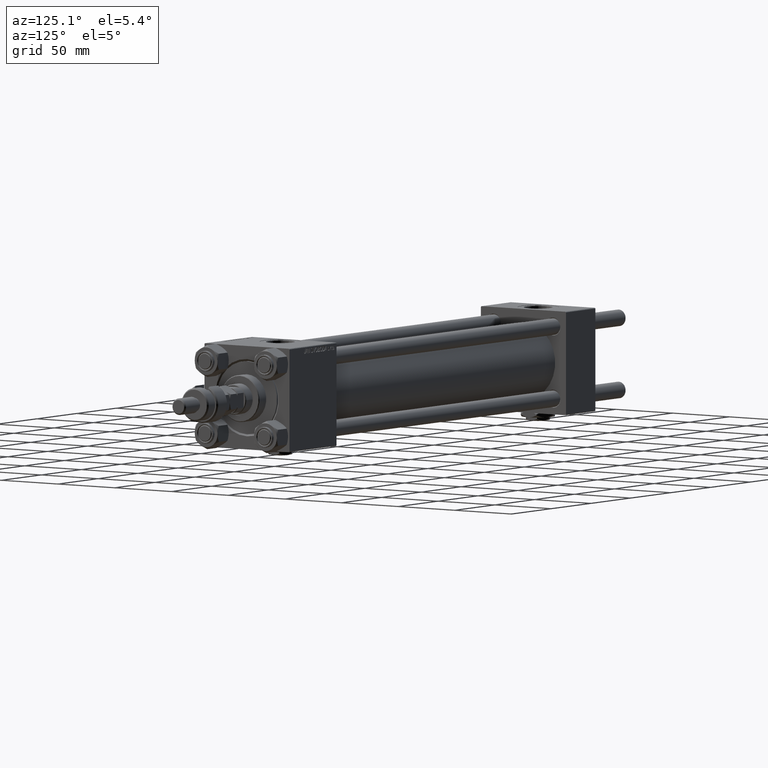
[diagram: clean part render]
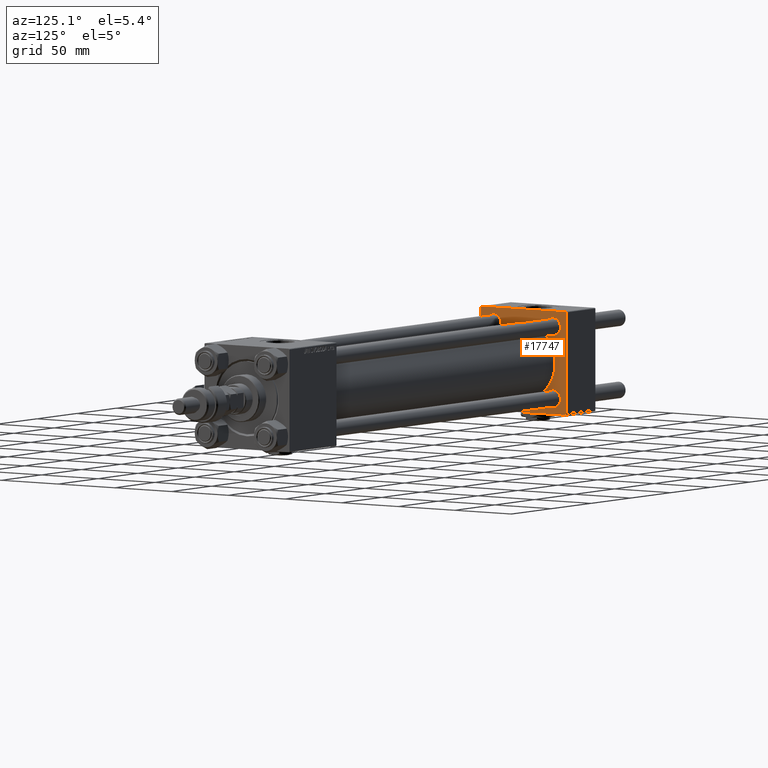
[diagram: same view with one face highlighted and labeled with its STEP entity id]
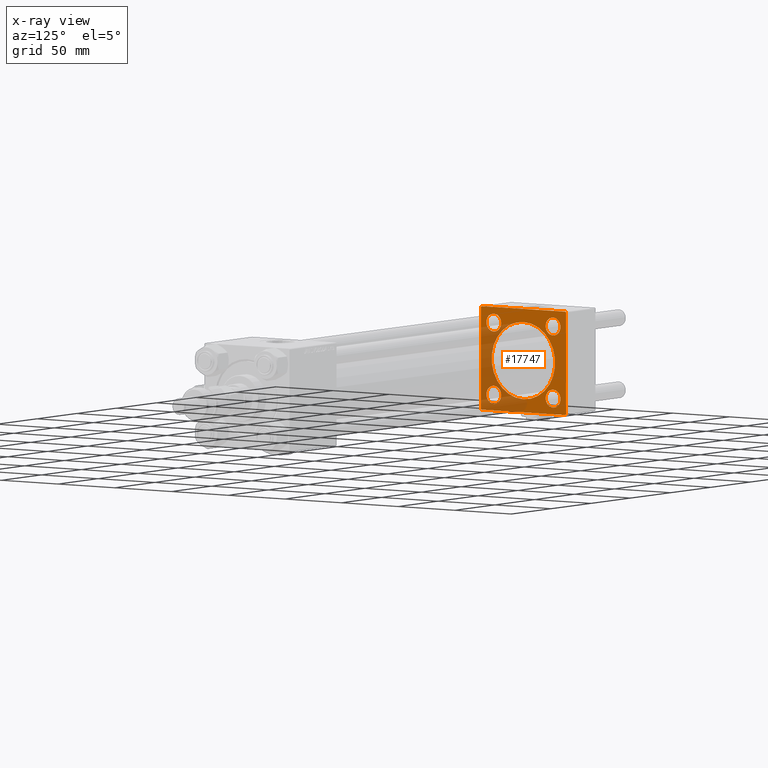
[diagram: x-ray of the same camera — body ghosted, the highlighted face saturated]
A machine part, auxiliary view. The second image highlights one B-rep face of the part: STEP entity #17747.
The next image is the same camera in x-ray: the body ghosted, the highlighted face saturated — about 37% of this face is hidden behind the body in this view.
In plain terms, the highlighted planar face has unit normal (-1, 0, 0).
Its self-contained STEP definition (entity closure, byte-faithful):
#80 = CARTESIAN_POINT ( 'NONE',  ( 37.00000000000000000, 36.99999999999999289, 37.50000000000000000 ) ) ;
#675 = CARTESIAN_POINT ( 'NONE',  ( 37.00000000000000000, 26.14999999999999858, -32.65000000000011937 ) ) ;
#726 = VERTEX_POINT ( 'NONE', #19112 ) ;
#752 = ORIENTED_EDGE ( 'NONE', *, *, #38166, .T. ) ;
#759 = CARTESIAN_POINT ( 'NONE',  ( 36.99999999999997868, 0.000000000000000000, 28.00000000000000000 ) ) ;
#1226 = ORIENTED_EDGE ( 'NONE', *, *, #24396, .T. ) ;
#1350 = DIRECTION ( 'NONE',  ( 0.000000000000000000, 9.251858538542971581E-17, -1.000000000000000000 ) ) ;
#1456 = LINE ( 'NONE', #46807, #7899 ) ;
#1793 = VECTOR ( 'NONE', #53690, 1000.000000000000000 ) ;
#2693 = FACE_BOUND ( 'NONE', #2727, .T. ) ;
#2727 = EDGE_LOOP ( 'NONE', ( #4656, #1226 ) ) ;
#2882 = CARTESIAN_POINT ( 'NONE',  ( 37.00000000000000000, -37.50000000000000000, -37.00000000000003553 ) ) ;
#3273 = DIRECTION ( 'NONE',  ( 0.000000000000000000, 0.000000000000000000, 1.000000000000000000 ) ) ;
#3612 = AXIS2_PLACEMENT_3D ( 'NONE', #40257, #7379, #40531 ) ;
#4293 = CARTESIAN_POINT ( 'NONE',  ( 37.00000000000000000, -26.14999999999999147, -32.65000000000006963 ) ) ;
#4656 = ORIENTED_EDGE ( 'NONE', *, *, #47307, .T. ) ;
#4788 = DIRECTION ( 'NONE',  ( -1.000000000000000000, 0.000000000000000000, -0.000000000000000000 ) ) ;
#5632 = EDGE_LOOP ( 'NONE', ( #16050, #45684, #48341, #752, #27135, #13085, #11618, #36557 ) ) ;
#5700 = VERTEX_POINT ( 'NONE', #6861 ) ;
#5797 = EDGE_CURVE ( 'NONE', #31999, #23326, #14729, .T. ) ;
#5807 = VERTEX_POINT ( 'NONE', #20633 ) ;
#6788 = VERTEX_POINT ( 'NONE', #11091 ) ;
#6861 = CARTESIAN_POINT ( 'NONE',  ( 37.00000000000000000, -26.14999999999999147, 32.65000000000007674 ) ) ;
#6962 = CIRCLE ( 'NONE', #36078, 6.500000000000113687 ) ;
#7379 = DIRECTION ( 'NONE',  ( -1.000000000000000000, 0.000000000000000000, -0.000000000000000000 ) ) ;
#7899 = VECTOR ( 'NONE', #8415, 1000.000000000000114 ) ;
#7924 = VERTEX_POINT ( 'NONE', #43390 ) ;
#8415 = DIRECTION ( 'NONE',  ( -0.000000000000000000, 0.7071067811865474617, 0.7071067811865474617 ) ) ;
#8708 = VERTEX_POINT ( 'NONE', #29691 ) ;
#9074 = EDGE_LOOP ( 'NONE', ( #15747, #22912 ) ) ;
#9173 = CARTESIAN_POINT ( 'NONE',  ( 37.00000000000000000, -37.50000000000000711, 36.99999999999999289 ) ) ;
#9432 = AXIS2_PLACEMENT_3D ( 'NONE', #33371, #50182, #3273 ) ;
#9491 = DIRECTION ( 'NONE',  ( 0.000000000000000000, 0.000000000000000000, -1.000000000000000000 ) ) ;
#9495 = EDGE_CURVE ( 'NONE', #23326, #31999, #6962, .T. ) ;
#9801 = CIRCLE ( 'NONE', #16869, 6.500000000000064837 ) ;
#10142 = LINE ( 'NONE', #26757, #20652 ) ;
#10956 = FACE_BOUND ( 'NONE', #52305, .T. ) ;
#11091 = CARTESIAN_POINT ( 'NONE',  ( 37.00000000000000000, 36.99999999999999289, 37.50000000000000000 ) ) ;
#11151 = LINE ( 'NONE', #23600, #19883 ) ;
#11618 = ORIENTED_EDGE ( 'NONE', *, *, #29565, .T. ) ;
#12008 = EDGE_CURVE ( 'NONE', #726, #7924, #1456, .T. ) ;
#12215 = ORIENTED_EDGE ( 'NONE', *, *, #51618, .F. ) ;
#12769 = DIRECTION ( 'NONE',  ( -0.000000000000000000, -0.7071067811865474617, -0.7071067811865474617 ) ) ;
#13085 = ORIENTED_EDGE ( 'NONE', *, *, #20978, .T. ) ;
#13155 = EDGE_CURVE ( 'NONE', #726, #51018, #29127, .T. ) ;
#13600 = CARTESIAN_POINT ( 'NONE',  ( 36.99999999999997868, 0.000000000000000000, 0.000000000000000000 ) ) ;
#14528 = DIRECTION ( 'NONE',  ( 0.000000000000000000, 0.000000000000000000, 1.000000000000000000 ) ) ;
#14729 = CIRCLE ( 'NONE', #9432, 6.500000000000113687 ) ;
#14949 = VERTEX_POINT ( 'NONE', #18530 ) ;
#15478 = CARTESIAN_POINT ( 'NONE',  ( 37.00000000000000000, -37.00000000000002132, -37.50000000000000711 ) ) ;
#15747 = ORIENTED_EDGE ( 'NONE', *, *, #47397, .T. ) ;
#15940 = FACE_BOUND ( 'NONE', #9074, .T. ) ;
#16050 = ORIENTED_EDGE ( 'NONE', *, *, #13155, .F. ) ;
#16839 = AXIS2_PLACEMENT_3D ( 'NONE', #41351, #49619, #53232 ) ;
#16869 = AXIS2_PLACEMENT_3D ( 'NONE', #34362, #4788, #34634 ) ;
#16895 = CIRCLE ( 'NONE', #47751, 6.500000000000064837 ) ;
#17004 = VECTOR ( 'NONE', #9491, 1000.000000000000000 ) ;
#17733 = DIRECTION ( 'NONE',  ( 1.000000000000000000, -0.000000000000000000, 0.000000000000000000 ) ) ;
#17747 = ADVANCED_FACE ( 'NONE', ( #40542, #28943, #2693, #15940, #10956, #36956 ), #32808, .F. ) ;
#18530 = CARTESIAN_POINT ( 'NONE',  ( 37.00000000000000000, 37.49999999999999289, 37.00000000000000000 ) ) ;
#18641 = EDGE_LOOP ( 'NONE', ( #49895, #29057 ) ) ;
#19112 = CARTESIAN_POINT ( 'NONE',  ( 37.00000000000000000, 36.99999999999997868, -37.50000000000000000 ) ) ;
#19847 = CIRCLE ( 'NONE', #31333, 28.00000000000000000 ) ;
#19883 = VECTOR ( 'NONE', #28042, 1000.000000000000000 ) ;
#20633 = CARTESIAN_POINT ( 'NONE',  ( 36.99999999999997868, 3.429011037612589276E-15, -28.00000000000000000 ) ) ;
#20652 = VECTOR ( 'NONE', #1350, 1000.000000000000000 ) ;
#20978 = EDGE_CURVE ( 'NONE', #31196, #42987, #34626, .T. ) ;
#21190 = CARTESIAN_POINT ( 'NONE',  ( 37.00000000000000000, -26.14999999999999147, 26.15000000000000924 ) ) ;
#21813 = EDGE_CURVE ( 'NONE', #34996, #51239, #38894, .T. ) ;
#22056 = VECTOR ( 'NONE', #12769, 1000.000000000000114 ) ;
#22633 = VECTOR ( 'NONE', #33507, 1000.000000000000114 ) ;
#22912 = ORIENTED_EDGE ( 'NONE', *, *, #48368, .T. ) ;
#23326 = VERTEX_POINT ( 'NONE', #675 ) ;
#23600 = CARTESIAN_POINT ( 'NONE',  ( 37.00000000000000000, 37.49999999999999289, 37.50000000000000000 ) ) ;
#23655 = DIRECTION ( 'NONE',  ( -1.000000000000000000, 0.000000000000000000, -0.000000000000000000 ) ) ;
#24396 = EDGE_CURVE ( 'NONE', #5700, #52995, #9801, .T. ) ;
#24581 = LINE ( 'NONE', #15478, #38239 ) ;
#25099 = EDGE_CURVE ( 'NONE', #51239, #34996, #45163, .T. ) ;
#25236 = EDGE_LOOP ( 'NONE', ( #26297, #31524 ) ) ;
#26297 = ORIENTED_EDGE ( 'NONE', *, *, #9495, .T. ) ;
#26345 = DIRECTION ( 'NONE',  ( -1.000000000000000000, 0.000000000000000000, -0.000000000000000000 ) ) ;
#26757 = CARTESIAN_POINT ( 'NONE',  ( 37.00000000000000000, -37.50000000000000711, 37.49999999999999289 ) ) ;
#26941 = DIRECTION ( 'NONE',  ( -1.000000000000000000, 0.000000000000000000, -0.000000000000000000 ) ) ;
#27135 = ORIENTED_EDGE ( 'NONE', *, *, #36164, .T. ) ;
#27419 = DIRECTION ( 'NONE',  ( 1.000000000000000000, -0.000000000000000000, 0.000000000000000000 ) ) ;
#28042 = DIRECTION ( 'NONE',  ( 0.000000000000000000, -1.000000000000000000, -9.251858538542971581E-17 ) ) ;
#28943 = FACE_BOUND ( 'NONE', #25236, .T. ) ;
#29057 = ORIENTED_EDGE ( 'NONE', *, *, #21813, .T. ) ;
#29127 = LINE ( 'NONE', #36607, #1793 ) ;
#29185 = CARTESIAN_POINT ( 'NONE',  ( 37.00000000000000000, 26.14999999999999858, 32.65000000000012648 ) ) ;
#29565 = EDGE_CURVE ( 'NONE', #42987, #43363, #10142, .T. ) ;
#29691 = CARTESIAN_POINT ( 'NONE',  ( 37.00000000000000000, 26.14999999999999858, 19.64999999999988489 ) ) ;
#29780 = DIRECTION ( 'NONE',  ( -1.000000000000000000, 0.000000000000000000, -0.000000000000000000 ) ) ;
#29833 = DIRECTION ( 'NONE',  ( -1.000000000000000000, 0.000000000000000000, -0.000000000000000000 ) ) ;
#30175 = CIRCLE ( 'NONE', #35452, 6.500000000000119904 ) ;
#30206 = CIRCLE ( 'NONE', #37268, 6.500000000000119904 ) ;
#30977 = CARTESIAN_POINT ( 'NONE',  ( 37.00000000000000000, -37.00000000000002132, -37.50000000000000711 ) ) ;
#31196 = VERTEX_POINT ( 'NONE', #45112 ) ;
#31333 = AXIS2_PLACEMENT_3D ( 'NONE', #37396, #17733, #42614 ) ;
#31524 = ORIENTED_EDGE ( 'NONE', *, *, #5797, .T. ) ;
#31999 = VERTEX_POINT ( 'NONE', #52639 ) ;
#32347 = DIRECTION ( 'NONE',  ( 0.000000000000000000, 0.7071067811865524577, -0.7071067811865426878 ) ) ;
#32808 = PLANE ( 'NONE',  #16839 ) ;
#32992 = CARTESIAN_POINT ( 'NONE',  ( 37.00000000000000000, -26.14999999999999147, -19.64999999999995239 ) ) ;
#33371 = CARTESIAN_POINT ( 'NONE',  ( 37.00000000000000000, 26.14999999999999858, -26.15000000000000213 ) ) ;
#33507 = DIRECTION ( 'NONE',  ( 0.000000000000000000, -0.7071067811865474617, 0.7071067811865474617 ) ) ;
#34254 = CARTESIAN_POINT ( 'NONE',  ( 37.00000000000000000, 26.14999999999999858, 26.15000000000000213 ) ) ;
#34362 = CARTESIAN_POINT ( 'NONE',  ( 37.00000000000000000, -26.14999999999999147, 26.15000000000000924 ) ) ;
#34625 = AXIS2_PLACEMENT_3D ( 'NONE', #13600, #27419, #44246 ) ;
#34626 = LINE ( 'NONE', #9173, #22056 ) ;
#34634 = DIRECTION ( 'NONE',  ( 0.000000000000000000, 0.000000000000000000, 1.000000000000000000 ) ) ;
#34642 = DIRECTION ( 'NONE',  ( 0.000000000000000000, 0.000000000000000000, 1.000000000000000000 ) ) ;
#34693 = CARTESIAN_POINT ( 'NONE',  ( 37.00000000000000000, 26.14999999999999858, -26.15000000000000213 ) ) ;
#34996 = VERTEX_POINT ( 'NONE', #32992 ) ;
#35048 = EDGE_CURVE ( 'NONE', #49638, #5807, #19847, .T. ) ;
#35452 = AXIS2_PLACEMENT_3D ( 'NONE', #47940, #23655, #14528 ) ;
#36078 = AXIS2_PLACEMENT_3D ( 'NONE', #34693, #26941, #44322 ) ;
#36164 = EDGE_CURVE ( 'NONE', #6788, #31196, #11151, .T. ) ;
#36369 = CIRCLE ( 'NONE', #34625, 28.00000000000000000 ) ;
#36557 = ORIENTED_EDGE ( 'NONE', *, *, #53796, .T. ) ;
#36607 = CARTESIAN_POINT ( 'NONE',  ( 37.00000000000000000, 37.49999999999999289, -37.50000000000000000 ) ) ;
#36956 = FACE_OUTER_BOUND ( 'NONE', #5632, .T. ) ;
#37268 = AXIS2_PLACEMENT_3D ( 'NONE', #34254, #29833, #42797 ) ;
#37396 = CARTESIAN_POINT ( 'NONE',  ( 36.99999999999997868, 0.000000000000000000, 0.000000000000000000 ) ) ;
#38166 = EDGE_CURVE ( 'NONE', #14949, #6788, #54468, .T. ) ;
#38239 = VECTOR ( 'NONE', #32347, 1000.000000000000000 ) ;
#38894 = CIRCLE ( 'NONE', #3612, 6.500000000000057732 ) ;
#40257 = CARTESIAN_POINT ( 'NONE',  ( 37.00000000000000000, -26.14999999999999147, -26.15000000000000924 ) ) ;
#40531 = DIRECTION ( 'NONE',  ( 0.000000000000000000, 0.000000000000000000, 1.000000000000000000 ) ) ;
#40542 = FACE_BOUND ( 'NONE', #18641, .T. ) ;
#40778 = CARTESIAN_POINT ( 'NONE',  ( 37.00000000000000000, 37.49999999999999289, 37.50000000000000000 ) ) ;
#41351 = CARTESIAN_POINT ( 'NONE',  ( 37.00000000000000000, 0.000000000000000000, 0.000000000000000000 ) ) ;
#42614 = DIRECTION ( 'NONE',  ( 0.000000000000000000, 0.000000000000000000, 1.000000000000000000 ) ) ;
#42797 = DIRECTION ( 'NONE',  ( 0.000000000000000000, 0.000000000000000000, 1.000000000000000000 ) ) ;
#42987 = VERTEX_POINT ( 'NONE', #49387 ) ;
#43363 = VERTEX_POINT ( 'NONE', #2882 ) ;
#43390 = CARTESIAN_POINT ( 'NONE',  ( 37.00000000000000000, 37.49999999999999289, -36.99999999999998579 ) ) ;
#43956 = VERTEX_POINT ( 'NONE', #29185 ) ;
#44246 = DIRECTION ( 'NONE',  ( 0.000000000000000000, 0.000000000000000000, 1.000000000000000000 ) ) ;
#44322 = DIRECTION ( 'NONE',  ( 0.000000000000000000, 0.000000000000000000, 1.000000000000000000 ) ) ;
#45112 = CARTESIAN_POINT ( 'NONE',  ( 37.00000000000000000, -37.00000000000000711, 37.49999999999999289 ) ) ;
#45163 = CIRCLE ( 'NONE', #46052, 6.500000000000057732 ) ;
#45625 = ORIENTED_EDGE ( 'NONE', *, *, #35048, .F. ) ;
#45684 = ORIENTED_EDGE ( 'NONE', *, *, #12008, .T. ) ;
#46052 = AXIS2_PLACEMENT_3D ( 'NONE', #47305, #26345, #34642 ) ;
#46807 = CARTESIAN_POINT ( 'NONE',  ( 37.00000000000000000, 37.49999999999999289, -36.99999999999998579 ) ) ;
#47305 = CARTESIAN_POINT ( 'NONE',  ( 37.00000000000000000, -26.14999999999999147, -26.15000000000000924 ) ) ;
#47307 = EDGE_CURVE ( 'NONE', #52995, #5700, #16895, .T. ) ;
#47397 = EDGE_CURVE ( 'NONE', #8708, #43956, #30175, .T. ) ;
#47751 = AXIS2_PLACEMENT_3D ( 'NONE', #21190, #29780, #51010 ) ;
#47940 = CARTESIAN_POINT ( 'NONE',  ( 37.00000000000000000, 26.14999999999999858, 26.15000000000000213 ) ) ;
#48341 = ORIENTED_EDGE ( 'NONE', *, *, #49926, .F. ) ;
#48368 = EDGE_CURVE ( 'NONE', #43956, #8708, #30206, .T. ) ;
#49387 = CARTESIAN_POINT ( 'NONE',  ( 37.00000000000000000, -37.50000000000000711, 36.99999999999999289 ) ) ;
#49619 = DIRECTION ( 'NONE',  ( -1.000000000000000000, 0.000000000000000000, -0.000000000000000000 ) ) ;
#49638 = VERTEX_POINT ( 'NONE', #759 ) ;
#49895 = ORIENTED_EDGE ( 'NONE', *, *, #25099, .T. ) ;
#49926 = EDGE_CURVE ( 'NONE', #14949, #7924, #54270, .T. ) ;
#50182 = DIRECTION ( 'NONE',  ( -1.000000000000000000, 0.000000000000000000, -0.000000000000000000 ) ) ;
#51010 = DIRECTION ( 'NONE',  ( 0.000000000000000000, 0.000000000000000000, 1.000000000000000000 ) ) ;
#51018 = VERTEX_POINT ( 'NONE', #30977 ) ;
#51039 = CARTESIAN_POINT ( 'NONE',  ( 37.00000000000000000, -26.14999999999999147, 19.64999999999994529 ) ) ;
#51239 = VERTEX_POINT ( 'NONE', #4293 ) ;
#51618 = EDGE_CURVE ( 'NONE', #5807, #49638, #36369, .T. ) ;
#52305 = EDGE_LOOP ( 'NONE', ( #45625, #12215 ) ) ;
#52639 = CARTESIAN_POINT ( 'NONE',  ( 37.00000000000000000, 26.14999999999999858, -19.64999999999988844 ) ) ;
#52995 = VERTEX_POINT ( 'NONE', #51039 ) ;
#53232 = DIRECTION ( 'NONE',  ( -0.000000000000000000, 0.000000000000000000, 1.000000000000000000 ) ) ;
#53690 = DIRECTION ( 'NONE',  ( 0.000000000000000000, -1.000000000000000000, -9.251858538542972814E-17 ) ) ;
#53796 = EDGE_CURVE ( 'NONE', #43363, #51018, #24581, .T. ) ;
#54270 = LINE ( 'NONE', #40778, #17004 ) ;
#54468 = LINE ( 'NONE', #80, #22633 ) ;